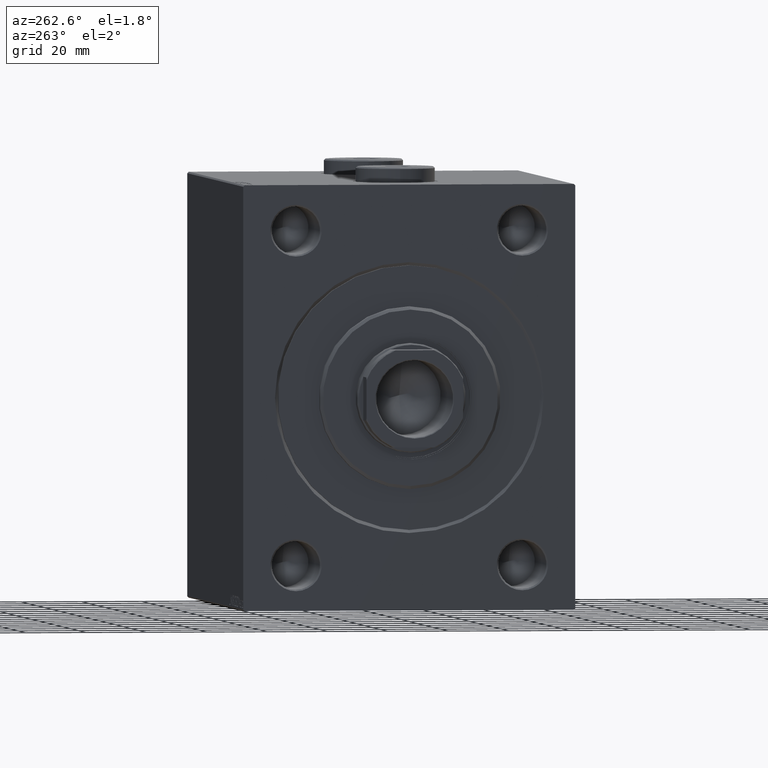
[diagram: clean part render]
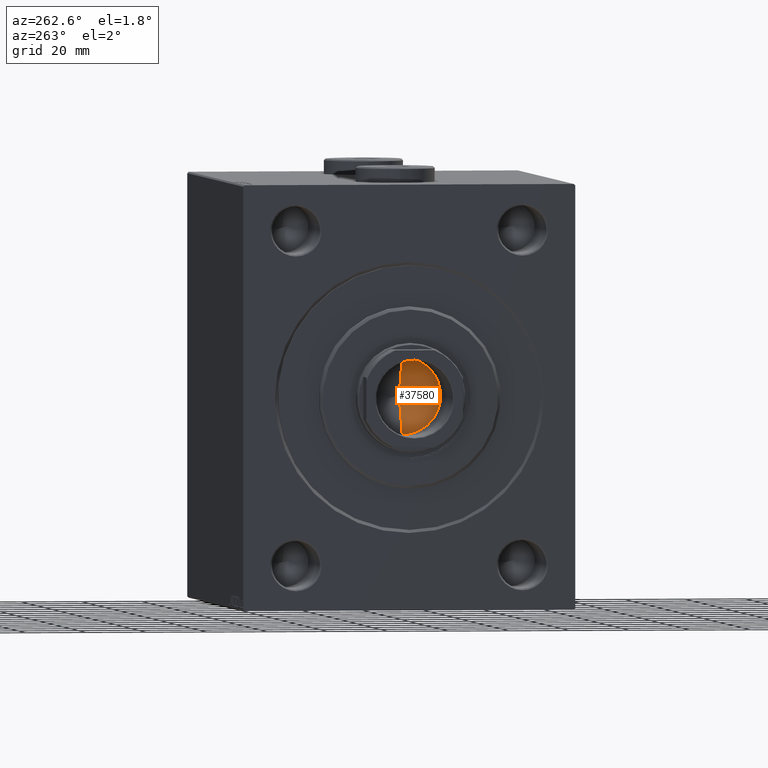
[diagram: same view with one face highlighted and labeled with its STEP entity id]
A machine part, auxiliary view. The second image highlights one B-rep face of the part: STEP entity #37580.
In plain terms, the highlighted conical surface has half-angle 59 deg.
Its self-contained STEP definition (entity closure, byte-faithful):
#1048 = CONICAL_SURFACE ( 'NONE', #40163, 12.74999999999999467, 1.029744258676653645 ) ;
#1980 = DIRECTION ( 'NONE',  ( -0.000000000000000000, -0.000000000000000000, 1.000000000000000000 ) ) ;
#3530 = EDGE_CURVE ( 'NONE', #19943, #28985, #9658, .T. ) ;
#3888 = VECTOR ( 'NONE', #6706, 1000.000000000000000 ) ;
#5784 = CARTESIAN_POINT ( 'NONE',  ( 12.74999999999999467, 0.000000000000000000, 104.0000000000000142 ) ) ;
#5906 = FACE_OUTER_BOUND ( 'NONE', #35231, .T. ) ;
#6706 = DIRECTION ( 'NONE',  ( -0.8571673007021118895, 1.049727191138618079E-16, 0.5150380749100549327 ) ) ;
#8804 = CARTESIAN_POINT ( 'NONE',  ( -12.74999999999999467, 1.561424668912874519E-15, 104.0000000000000142 ) ) ;
#9658 = LINE ( 'NONE', #45233, #12601 ) ;
#9886 = DIRECTION ( 'NONE',  ( 0.8571673007021118895, 0.000000000000000000, 0.5150380749100549327 ) ) ;
#10075 = CARTESIAN_POINT ( 'NONE',  ( 0.000000000000000000, 0.000000000000000000, 104.0000000000000142 ) ) ;
#12601 = VECTOR ( 'NONE', #9886, 1000.000000000000000 ) ;
#13098 = EDGE_CURVE ( 'NONE', #19943, #39694, #17779, .T. ) ;
#17779 = LINE ( 'NONE', #45289, #3888 ) ;
#19943 = VERTEX_POINT ( 'NONE', #27611 ) ;
#19988 = DIRECTION ( 'NONE',  ( 1.000000000000000000, 0.000000000000000000, 0.000000000000000000 ) ) ;
#20666 = ORIENTED_EDGE ( 'NONE', *, *, #13098, .T. ) ;
#21066 = CIRCLE ( 'NONE', #28449, 12.74999999999999467 ) ;
#24158 = DIRECTION ( 'NONE',  ( -0.000000000000000000, -0.000000000000000000, 1.000000000000000000 ) ) ;
#27368 = ORIENTED_EDGE ( 'NONE', *, *, #44151, .T. ) ;
#27611 = CARTESIAN_POINT ( 'NONE',  ( -1.026246296720136938E-14, 0.000000000000000000, 96.33902710739860709 ) ) ;
#28449 = AXIS2_PLACEMENT_3D ( 'NONE', #10075, #24158, #35480 ) ;
#28985 = VERTEX_POINT ( 'NONE', #5784 ) ;
#29925 = CARTESIAN_POINT ( 'NONE',  ( 0.000000000000000000, 0.000000000000000000, 104.0000000000000142 ) ) ;
#30012 = ORIENTED_EDGE ( 'NONE', *, *, #3530, .F. ) ;
#35231 = EDGE_LOOP ( 'NONE', ( #30012, #20666, #27368 ) ) ;
#35480 = DIRECTION ( 'NONE',  ( 1.000000000000000000, 0.000000000000000000, 0.000000000000000000 ) ) ;
#37580 = ADVANCED_FACE ( 'NONE', ( #5906 ), #1048, .F. ) ;
#39694 = VERTEX_POINT ( 'NONE', #8804 ) ;
#40163 = AXIS2_PLACEMENT_3D ( 'NONE', #29925, #1980, #19988 ) ;
#44151 = EDGE_CURVE ( 'NONE', #39694, #28985, #21066, .T. ) ;
#45233 = CARTESIAN_POINT ( 'NONE',  ( 12.74999999999999467, 0.000000000000000000, 104.0000000000000142 ) ) ;
#45289 = CARTESIAN_POINT ( 'NONE',  ( -12.74999999999999467, 1.561424668912874519E-15, 104.0000000000000142 ) ) ;